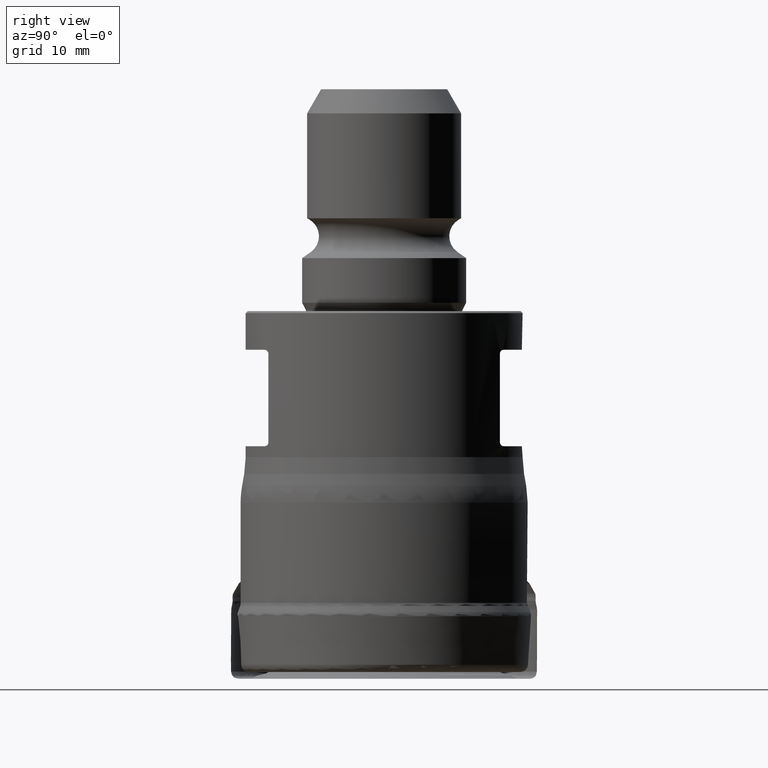
[diagram: clean part render]
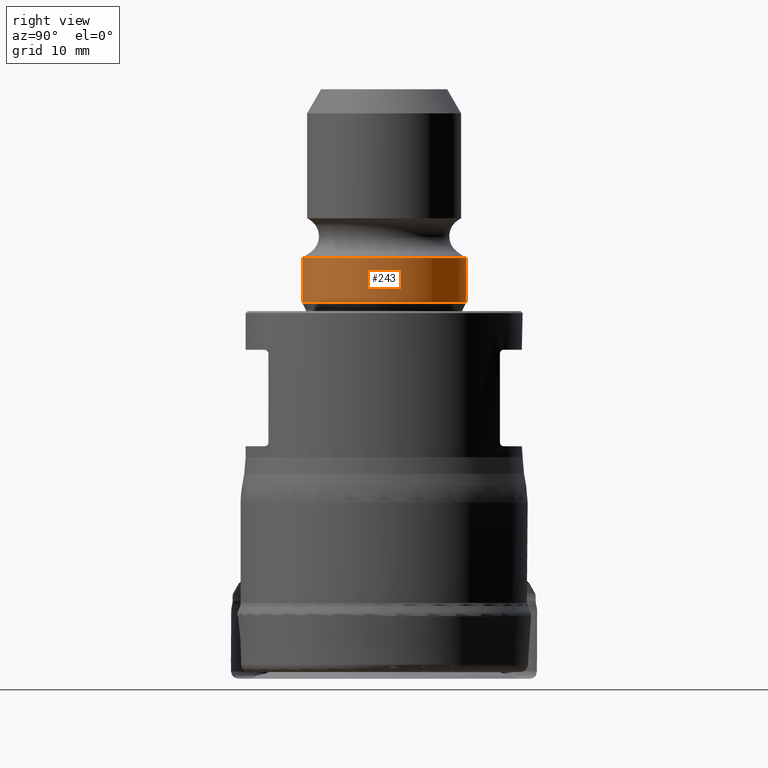
[diagram: same view with one face highlighted and labeled with its STEP entity id]
A machine part, right view. The second image highlights one B-rep face of the part: STEP entity #243.
In plain terms, the highlighted cylindrical surface (bore or boss wall) has radius 8.5 mm, axis along (0, 0, 1).
Its self-contained STEP definition (entity closure, byte-faithful):
#211=CYLINDRICAL_SURFACE('',#1002,8.5);
#243=ADVANCED_FACE('',(#332,#333),#211,.T.);
#332=FACE_BOUND('',#446,.T.);
#333=FACE_BOUND('',#447,.T.);
#446=EDGE_LOOP('',(#582));
#447=EDGE_LOOP('',(#583));
#582=ORIENTED_EDGE('',*,*,#809,.T.);
#583=ORIENTED_EDGE('',*,*,#810,.F.);
#736=VERTEX_POINT('',#1756);
#737=VERTEX_POINT('',#1759);
#809=EDGE_CURVE('',#736,#736,#876,.T.);
#810=EDGE_CURVE('',#737,#737,#877,.T.);
#876=CIRCLE('',#999,8.5);
#877=CIRCLE('',#1001,8.5);
#999=AXIS2_PLACEMENT_3D('',#1755,#1137,#1138);
#1001=AXIS2_PLACEMENT_3D('',#1758,#1141,#1142);
#1002=AXIS2_PLACEMENT_3D('',#1760,#1143,#1144);
#1137=DIRECTION('',(0.,1.17145536458252E-15,1.));
#1138=DIRECTION('',(0.,-1.,8.16340459283203E-16));
#1141=DIRECTION('',(0.,1.17145536458252E-15,1.));
#1142=DIRECTION('',(0.,-1.,8.16340459283203E-16));
#1143=DIRECTION('',(0.,1.17145536458252E-15,1.));
#1144=DIRECTION('',(0.,-1.,1.17145536458252E-15));
#1755=CARTESIAN_POINT('',(0.,4.56472486393674E-14,38.9662722280801));
#1756=CARTESIAN_POINT('',(0.,-8.49999999999996,38.9662722280801));
#1758=CARTESIAN_POINT('',(0.,5.1075453895798E-14,43.6));
#1759=CARTESIAN_POINT('',(0.,-8.49999999999995,43.6));
#1760=CARTESIAN_POINT('',(0.,0.,0.));